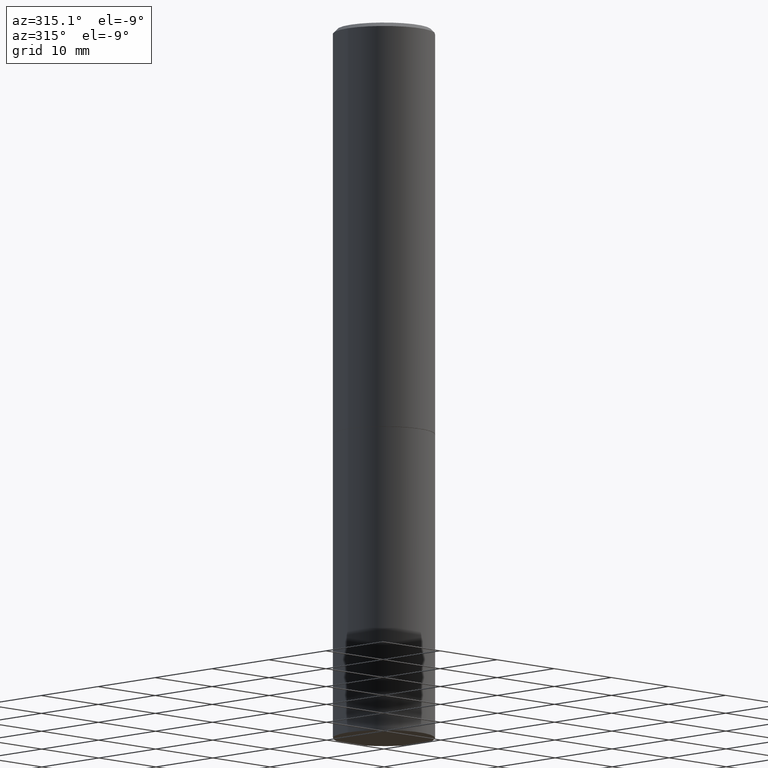
[diagram: clean part render]
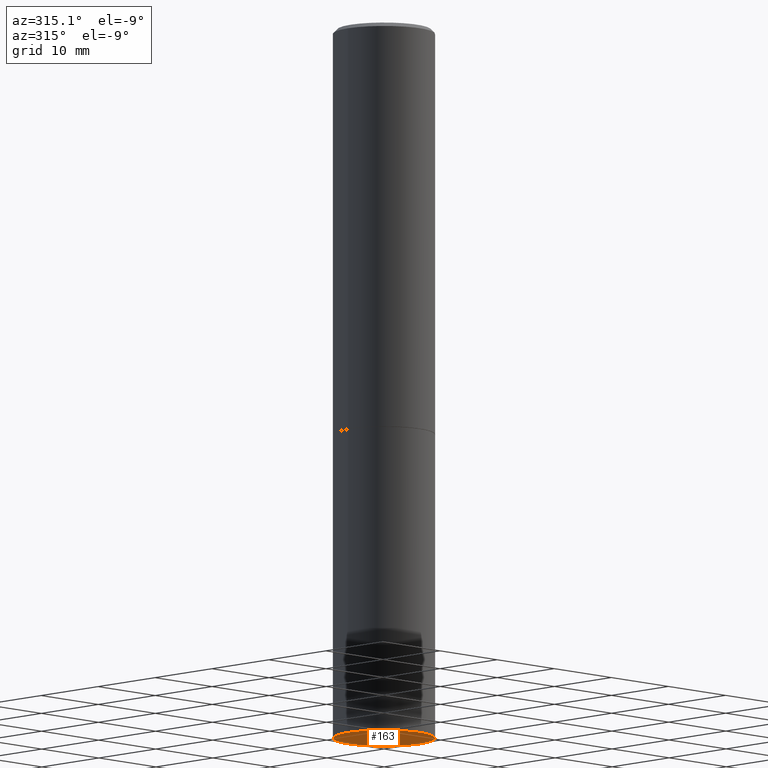
[diagram: same view with one face highlighted and labeled with its STEP entity id]
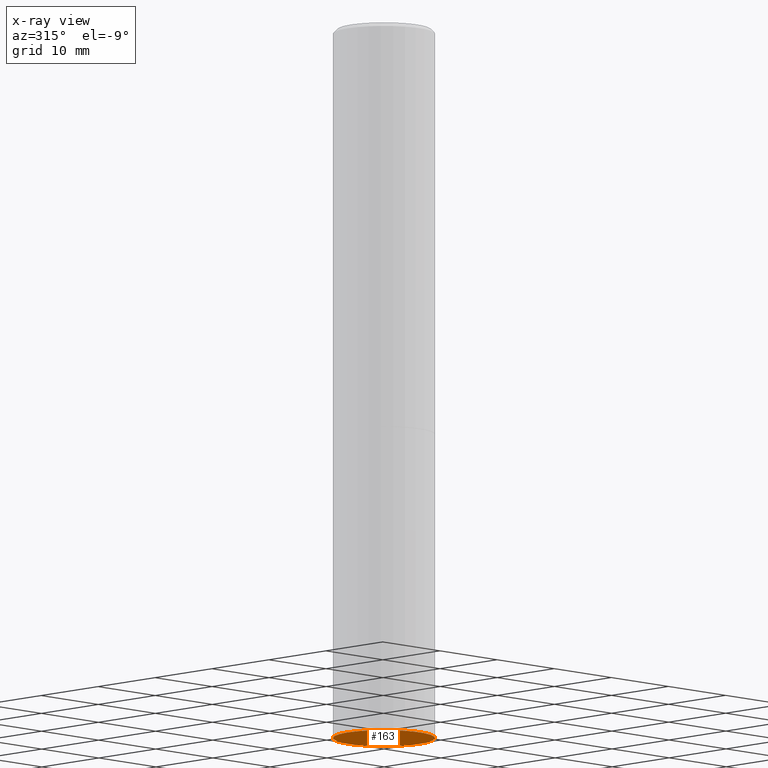
[diagram: x-ray of the same camera — body ghosted, the highlighted face saturated]
A machine part, auxiliary view. The second image highlights one B-rep face of the part: STEP entity #163.
The next image is the same camera in x-ray: the body ghosted, the highlighted face saturated — about 0% of this face is hidden behind the body in this view.
In plain terms, the highlighted planar face has unit normal (0, -0, -1).
Its self-contained STEP definition (entity closure, byte-faithful):
#50 = ORIENTED_EDGE ( 'NONE', *, *, #305, .F. ) ;
#68 = CARTESIAN_POINT ( 'NONE',  ( 1.745740669421652072E-15, 0.2499999999999877598, -3.500000000000000888 ) ) ;
#72 = VERTEX_POINT ( 'NONE', #200 ) ;
#73 = DIRECTION ( 'NONE',  ( 1.000000000000000000, -6.982962677686270655E-15, 0.000000000000000000 ) ) ;
#84 = EDGE_LOOP ( 'NONE', ( #50, #172 ) ) ;
#90 = VERTEX_POINT ( 'NONE', #239 ) ;
#97 = AXIS2_PLACEMENT_3D ( 'NONE', #201, #266, #149 ) ;
#102 = DIRECTION ( 'NONE',  ( 2.438088387897960049E-29, -3.491481338843145188E-15, -1.000000000000000000 ) ) ;
#149 = DIRECTION ( 'NONE',  ( 1.000000000000000000, -6.982962677686270655E-15, 0.000000000000000000 ) ) ;
#163 = ADVANCED_FACE ( 'NONE', ( #247 ), #191, .T. ) ;
#168 = CIRCLE ( 'NONE', #346, 0.2500000000000000000 ) ;
#172 = ORIENTED_EDGE ( 'NONE', *, *, #190, .F. ) ;
#190 = EDGE_CURVE ( 'NONE', #90, #72, #168, .T. ) ;
#191 = PLANE ( 'NONE',  #345 ) ;
#195 = CIRCLE ( 'NONE', #97, 0.2500000000000000000 ) ;
#200 = CARTESIAN_POINT ( 'NONE',  ( 0.2500000000000000000, -1.396592535537257602E-14, -3.500000000000000000 ) ) ;
#201 = CARTESIAN_POINT ( 'NONE',  ( 8.559140821647976968E-29, -1.222018468595100934E-14, -3.500000000000000000 ) ) ;
#223 = DIRECTION ( 'NONE',  ( -1.000000000000000000, 6.982962677686265922E-15, -4.876176775795935793E-29 ) ) ;
#239 = CARTESIAN_POINT ( 'NONE',  ( -0.2500000000000000000, -7.825216842418397817E-15, -3.500000000000000000 ) ) ;
#247 = FACE_OUTER_BOUND ( 'NONE', #84, .T. ) ;
#266 = DIRECTION ( 'NONE',  ( -2.445468806185136597E-29, 3.491481338843145583E-15, 1.000000000000000000 ) ) ;
#305 = EDGE_CURVE ( 'NONE', #72, #90, #195, .T. ) ;
#323 = DIRECTION ( 'NONE',  ( -2.445468806185136597E-29, 3.491481338843145583E-15, 1.000000000000000000 ) ) ;
#345 = AXIS2_PLACEMENT_3D ( 'NONE', #68, #102, #223 ) ;
#346 = AXIS2_PLACEMENT_3D ( 'NONE', #348, #323, #73 ) ;
#348 = CARTESIAN_POINT ( 'NONE',  ( 8.559140821647976968E-29, -1.222018468595100934E-14, -3.500000000000000000 ) ) ;